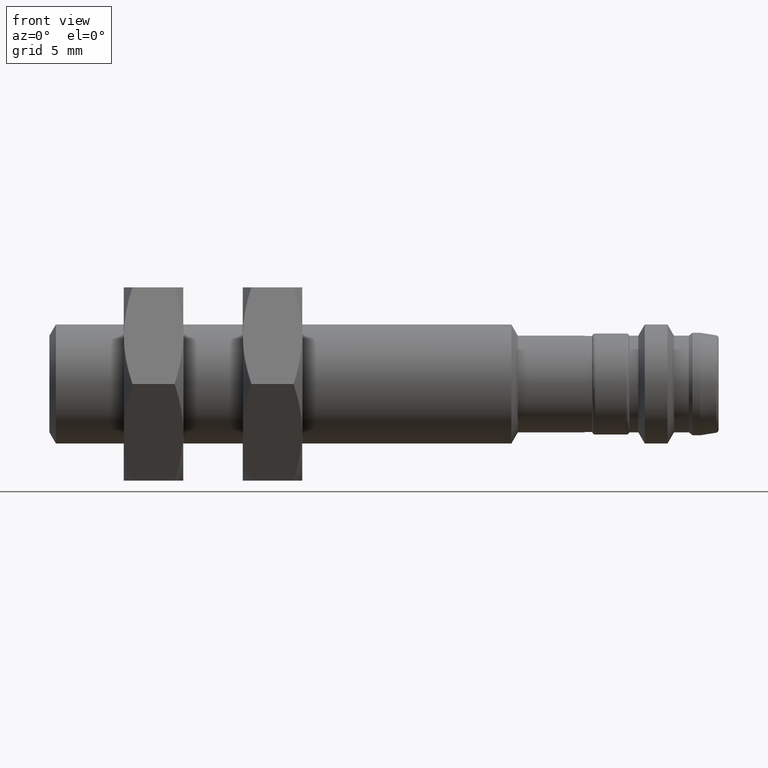
[diagram: clean part render]
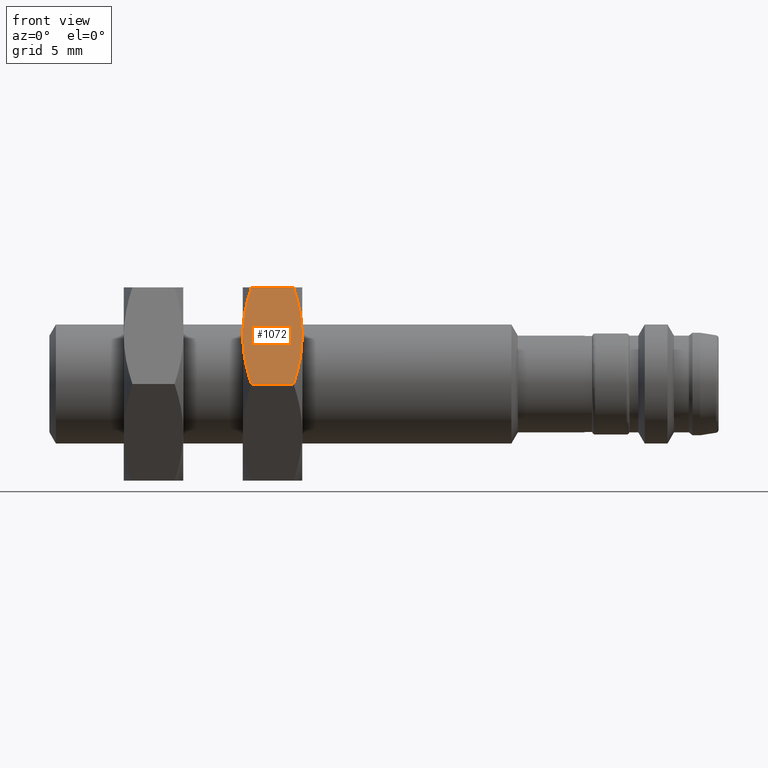
[diagram: same view with one face highlighted and labeled with its STEP entity id]
A machine part, front view. The second image highlights one B-rep face of the part: STEP entity #1072.
In plain terms, the highlighted planar face has unit normal (0, 0.866, -0.5).
Its self-contained STEP definition (entity closure, byte-faithful):
#6 = CARTESIAN_POINT ( 'NONE',  ( 0.5118110236203433638, -0.2216206741970919158, 0.1279527559056776453 ) ) ;
#94 = EDGE_CURVE ( 'NONE', #1211, #643, #1020, .T. ) ;
#124 = B_SPLINE_CURVE_WITH_KNOTS ( 'NONE', 3,
 ( #226, #1345, #884, #567 ),
 .UNSPECIFIED., .F., .F.,
 ( 4, 4 ),
 ( 2.405881509720758408E-16, 0.003797417448759535588 ),
 .UNSPECIFIED. ) ;
#165 = VECTOR ( 'NONE', #259, 39.37007874015748143 ) ;
#225 = ORIENTED_EDGE ( 'NONE', *, *, #1876, .F. ) ;
#226 = CARTESIAN_POINT ( 'NONE',  ( 0.5118110236203433638, -0.2216206741970919158, 0.1279527559056776453 ) ) ;
#259 = DIRECTION ( 'NONE',  ( -1.000000000000000000, 0.0000000000000000000, -0.0000000000000000000 ) ) ;
#274 = CARTESIAN_POINT ( 'NONE',  ( 0.6464347797944450802, -0.1477471154752738880, 0.2559055129471271561 ) ) ;
#296 = B_SPLINE_CURVE_WITH_KNOTS ( 'NONE', 3,
 ( #1816, #1665, #578, #1674 ),
 .UNSPECIFIED., .F., .F.,
 ( 4, 4 ),
 ( 1.124797965795554860E-16, 0.003797417346080343183 ),
 .UNSPECIFIED. ) ;
#299 = CARTESIAN_POINT ( 'NONE',  ( 0.7874015748031496509, -0.1477471161312035597, 0.2559055118110236671 ) ) ;
#318 = EDGE_LOOP ( 'NONE', ( #1520, #225, #1861, #412, #1117, #1648 ) ) ;
#348 = DIRECTION ( 'NONE',  ( -1.000000000000000000, 0.0000000000000000000, -0.0000000000000000000 ) ) ;
#370 = VERTEX_POINT ( 'NONE', #6 ) ;
#376 = CARTESIAN_POINT ( 'NONE',  ( 0.6464347797944440810, -0.2954942329183382621, 1.136106577577440053E-09 ) ) ;
#412 = ORIENTED_EDGE ( 'NONE', *, *, #851, .F. ) ;
#424 = CARTESIAN_POINT ( 'NONE',  ( 0.6692913385824745820, -0.2216206741967617910, 0.1279527559054867702 ) ) ;
#458 = DIRECTION ( 'NONE',  ( 0.0000000000000000000, 0.8660254037844387076, -0.4999999999999998890 ) ) ;
#476 = FACE_OUTER_BOUND ( 'NONE', #318, .T. ) ;
#544 = EDGE_CURVE ( 'NONE', #1960, #1263, #858, .T. ) ;
#562 = CARTESIAN_POINT ( 'NONE',  ( 0.6692913385824745820, -0.2216206741967617910, 0.1279527559054867702 ) ) ;
#567 = CARTESIAN_POINT ( 'NONE',  ( 0.5346675820301574067, -0.1477471161311086356, 0.2559055118111880911 ) ) ;
#578 = CARTESIAN_POINT ( 'NONE',  ( 0.6603696898452154906, -0.2713582602315905978, 0.04180472984743530129 ) ) ;
#643 = VERTEX_POINT ( 'NONE', #906 ) ;
#801 = EDGE_CURVE ( 'NONE', #643, #370, #1238, .T. ) ;
#850 = CARTESIAN_POINT ( 'NONE',  ( 0.5207326728523437032, -0.2713582615682151866, 0.04180472753233360761 ) ) ;
#851 = EDGE_CURVE ( 'NONE', #370, #1263, #124, .T. ) ;
#858 = LINE ( 'NONE', #1130, #1991 ) ;
#884 = CARTESIAN_POINT ( 'NONE',  ( 0.5207326728523159476, -0.1718830868254433708, 0.2141007842786068205 ) ) ;
#901 = CARTESIAN_POINT ( 'NONE',  ( 0.6692913385824456052, -0.1964068342648608301, 0.1716244077215485775 ) ) ;
#906 = CARTESIAN_POINT ( 'NONE',  ( 0.5346675820301574067, -0.2954942322625017659, 1.644933277306301234E-13 ) ) ;
#918 = EDGE_CURVE ( 'NONE', #1893, #1211, #296, .T. ) ;
#924 = PLANE ( 'NONE',  #1853 ) ;
#1020 = LINE ( 'NONE', #1809, #165 ) ;
#1072 = ADVANCED_FACE ( 'NONE', ( #476 ), #924, .F. ) ;
#1117 = ORIENTED_EDGE ( 'NONE', *, *, #801, .F. ) ;
#1130 = CARTESIAN_POINT ( 'NONE',  ( 0.7874015748031496509, -0.1477471161312035597, 0.2559055118110236671 ) ) ;
#1150 = CARTESIAN_POINT ( 'NONE',  ( 0.5346675820301574067, -0.1477471161311086356, 0.2559055118111880911 ) ) ;
#1207 = CARTESIAN_POINT ( 'NONE',  ( 0.6464347797944450802, -0.1477471154752738880, 0.2559055129471271561 ) ) ;
#1211 = VERTEX_POINT ( 'NONE', #376 ) ;
#1238 = B_SPLINE_CURVE_WITH_KNOTS ( 'NONE', 3,
 ( #1617, #850, #1638, #1952 ),
 .UNSPECIFIED., .F., .F.,
 ( 4, 4 ),
 ( 1.212621025045376564E-14, 0.003797417448764283093 ),
 .UNSPECIFIED. ) ;
#1263 = VERTEX_POINT ( 'NONE', #1150 ) ;
#1324 = B_SPLINE_CURVE_WITH_KNOTS ( 'NONE', 3,
 ( #274, #1695, #901, #562 ),
 .UNSPECIFIED., .F., .F.,
 ( 4, 4 ),
 ( 3.139842837767127417E-11, 0.003797417514551167279 ),
 .UNSPECIFIED. ) ;
#1345 = CARTESIAN_POINT ( 'NONE',  ( 0.5118110236202819685, -0.1964068345261188731, 0.1716244072685864097 ) ) ;
#1404 = DIRECTION ( 'NONE',  ( 0.0000000000000000000, 0.4999999999999998335, 0.8660254037844385966 ) ) ;
#1520 = ORIENTED_EDGE ( 'NONE', *, *, #918, .F. ) ;
#1617 = CARTESIAN_POINT ( 'NONE',  ( 0.5346675820301574067, -0.2954942322625017659, 1.644933277306301234E-13 ) ) ;
#1638 = CARTESIAN_POINT ( 'NONE',  ( 0.5118110236201564023, -0.2468345138672711214, 0.08428110454236915905 ) ) ;
#1648 = ORIENTED_EDGE ( 'NONE', *, *, #94, .F. ) ;
#1665 = CARTESIAN_POINT ( 'NONE',  ( 0.6692913385824456052, -0.2468345131719951180, 0.08428110574662255050 ) ) ;
#1674 = CARTESIAN_POINT ( 'NONE',  ( 0.6464347797944440810, -0.2954942329183382621, 1.136106577577440053E-09 ) ) ;
#1695 = CARTESIAN_POINT ( 'NONE',  ( 0.6603696880296674454, -0.1718830845390585671, 0.2141007852848756665 ) ) ;
#1809 = CARTESIAN_POINT ( 'NONE',  ( 0.7874015748031496509, -0.2954942322624069528, 6.829619984160658046E-17 ) ) ;
#1816 = CARTESIAN_POINT ( 'NONE',  ( 0.6692913385824745820, -0.2216206741967617910, 0.1279527559054867702 ) ) ;
#1853 = AXIS2_PLACEMENT_3D ( 'NONE', #299, #458, #1404 ) ;
#1861 = ORIENTED_EDGE ( 'NONE', *, *, #544, .T. ) ;
#1876 = EDGE_CURVE ( 'NONE', #1960, #1893, #1324, .T. ) ;
#1893 = VERTEX_POINT ( 'NONE', #424 ) ;
#1952 = CARTESIAN_POINT ( 'NONE',  ( 0.5118110236203433638, -0.2216206741970919158, 0.1279527559056776453 ) ) ;
#1960 = VERTEX_POINT ( 'NONE', #1207 ) ;
#1991 = VECTOR ( 'NONE', #348, 39.37007874015748143 ) ;